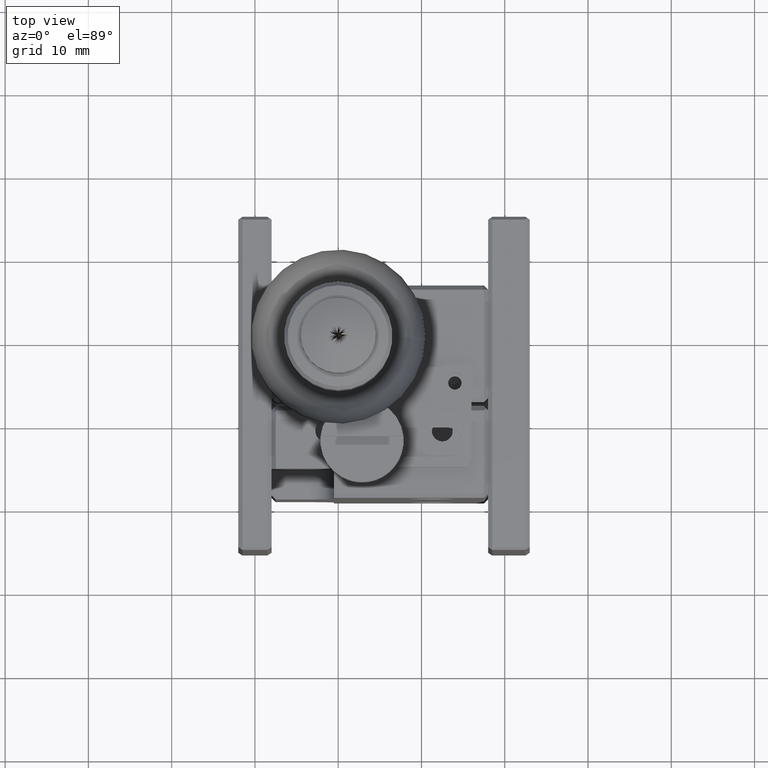
[diagram: clean part render]
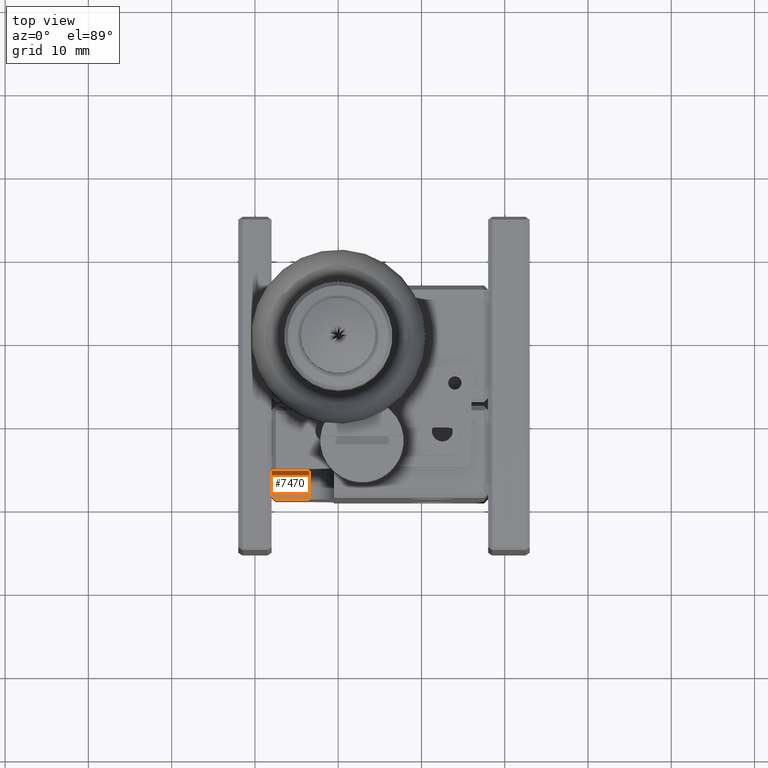
[diagram: same view with one face highlighted and labeled with its STEP entity id]
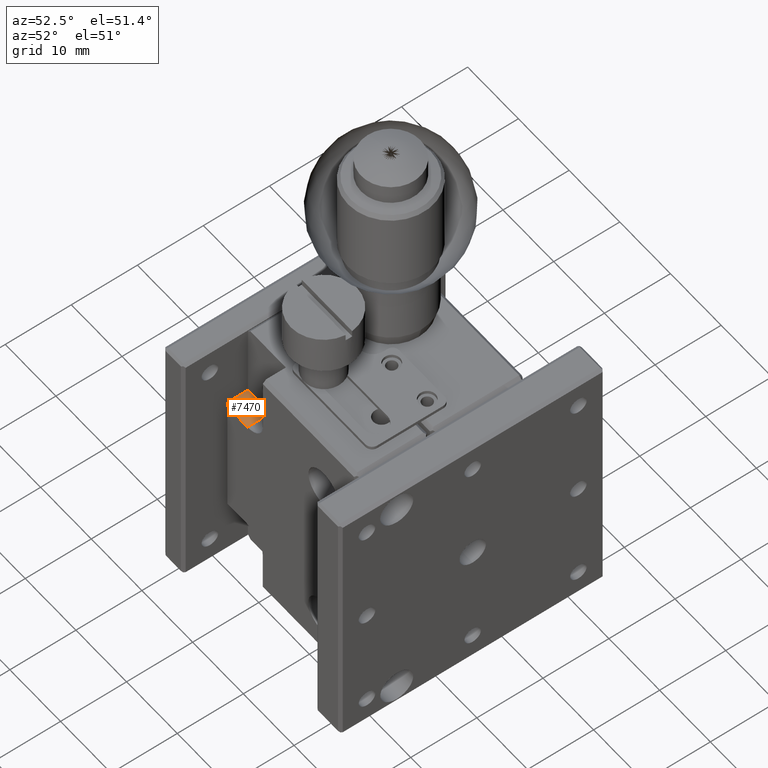
[diagram: same view with one face highlighted and labeled with its STEP entity id]
A machine part, top view. The second image highlights one B-rep face of the part: STEP entity #7470.
A second angle (auxiliary view) of the same face is appended — the face is thin or edge-on in the first view.
In plain terms, the highlighted planar face has unit normal (0, 0, -1).
Its self-contained STEP definition (entity closure, byte-faithful):
#134 = LINE ( 'NONE', #1432, #4103 ) ;
#573 = VERTEX_POINT ( 'NONE', #2817 ) ;
#729 = CARTESIAN_POINT ( 'NONE',  ( -7.749999999999840128, -18.75000000000000000, -11.80000000000000071 ) ) ;
#1004 = ORIENTED_EDGE ( 'NONE', *, *, #3558, .F. ) ;
#1432 = CARTESIAN_POINT ( 'NONE',  ( 5.750000000000160760, -19.00000000000000000, -11.80000000000000071 ) ) ;
#1466 = DIRECTION ( 'NONE',  ( 0.000000000000000000, 1.000000000000000000, 0.000000000000000000 ) ) ;
#1569 = VERTEX_POINT ( 'NONE', #6331 ) ;
#1747 = ORIENTED_EDGE ( 'NONE', *, *, #4749, .F. ) ;
#1779 = AXIS2_PLACEMENT_3D ( 'NONE', #3551, #2211, #6708 ) ;
#1926 = CARTESIAN_POINT ( 'NONE',  ( -7.999999999999840128, 15.65000000000019931, -11.80000000000000071 ) ) ;
#1991 = VERTEX_POINT ( 'NONE', #5664 ) ;
#2211 = DIRECTION ( 'NONE',  ( 0.000000000000000000, 0.000000000000000000, -1.000000000000000000 ) ) ;
#2315 = VECTOR ( 'NONE', #1466, 1000.000000000000000 ) ;
#2593 = CARTESIAN_POINT ( 'NONE',  ( -7.999999999999840128, -18.50000000000000000, -11.79999999999999893 ) ) ;
#2735 = DIRECTION ( 'NONE',  ( -0.7071067811865474617, 0.7071067811865474617, -0.000000000000000000 ) ) ;
#2778 = LINE ( 'NONE', #7450, #4149 ) ;
#2817 = CARTESIAN_POINT ( 'NONE',  ( -3.499999999999835243, -19.00000000000000000, -11.80000000000000426 ) ) ;
#2881 = EDGE_CURVE ( 'NONE', #7432, #1569, #2778, .T. ) ;
#3064 = ORIENTED_EDGE ( 'NONE', *, *, #5374, .T. ) ;
#3178 = VERTEX_POINT ( 'NONE', #2593 ) ;
#3319 = LINE ( 'NONE', #1926, #6153 ) ;
#3511 = CARTESIAN_POINT ( 'NONE',  ( -7.999999999999840128, -15.50000000000000000, -11.79999999999999893 ) ) ;
#3551 = CARTESIAN_POINT ( 'NONE',  ( -13.49999999999980105, 15.65000000000019931, -11.80000000000000071 ) ) ;
#3558 = EDGE_CURVE ( 'NONE', #3178, #7432, #3319, .T. ) ;
#4056 = EDGE_CURVE ( 'NONE', #1991, #3178, #6711, .T. ) ;
#4078 = FACE_OUTER_BOUND ( 'NONE', #5200, .T. ) ;
#4103 = VECTOR ( 'NONE', #6111, 1000.000000000000000 ) ;
#4149 = VECTOR ( 'NONE', #4830, 1000.000000000000000 ) ;
#4749 = EDGE_CURVE ( 'NONE', #573, #1991, #134, .T. ) ;
#4830 = DIRECTION ( 'NONE',  ( 1.000000000000000000, -0.000000000000000000, 0.000000000000000000 ) ) ;
#5200 = EDGE_LOOP ( 'NONE', ( #7668, #1747, #3064, #7610, #1004 ) ) ;
#5374 = EDGE_CURVE ( 'NONE', #573, #1569, #6883, .T. ) ;
#5444 = CARTESIAN_POINT ( 'NONE',  ( -3.499999999999830358, -19.00000000000000000, -11.80000000000000782 ) ) ;
#5664 = CARTESIAN_POINT ( 'NONE',  ( -7.499999999999840128, -19.00000000000000000, -11.79999999999999893 ) ) ;
#5899 = DIRECTION ( 'NONE',  ( 0.000000000000000000, 1.000000000000000000, 0.000000000000000000 ) ) ;
#6095 = PLANE ( 'NONE',  #1779 ) ;
#6111 = DIRECTION ( 'NONE',  ( -1.000000000000000000, -0.000000000000000000, -0.000000000000000000 ) ) ;
#6153 = VECTOR ( 'NONE', #5899, 1000.000000000000000 ) ;
#6331 = CARTESIAN_POINT ( 'NONE',  ( -3.499999999999835243, -15.50000000000000000, -11.80000000000000426 ) ) ;
#6708 = DIRECTION ( 'NONE',  ( -1.000000000000000000, 0.000000000000000000, -0.000000000000000000 ) ) ;
#6711 = LINE ( 'NONE', #729, #7822 ) ;
#6883 = LINE ( 'NONE', #5444, #2315 ) ;
#7432 = VERTEX_POINT ( 'NONE', #3511 ) ;
#7450 = CARTESIAN_POINT ( 'NONE',  ( -13.49999999999980105, -15.50000000000000000, -11.80000000000000071 ) ) ;
#7470 = ADVANCED_FACE ( 'NONE', ( #4078 ), #6095, .F. ) ;
#7610 = ORIENTED_EDGE ( 'NONE', *, *, #2881, .F. ) ;
#7668 = ORIENTED_EDGE ( 'NONE', *, *, #4056, .F. ) ;
#7822 = VECTOR ( 'NONE', #2735, 1000.000000000000114 ) ;